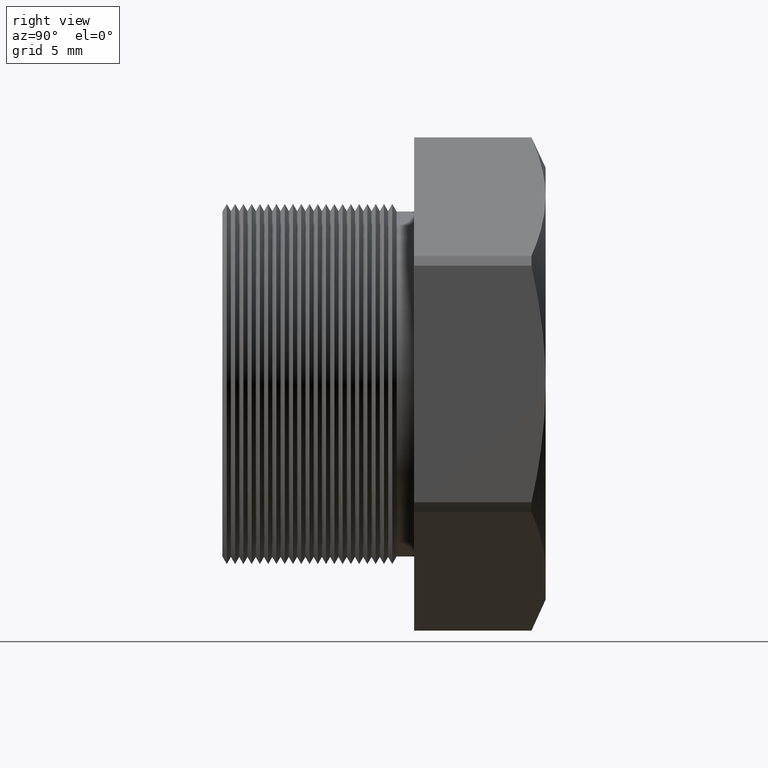
[diagram: clean part render]
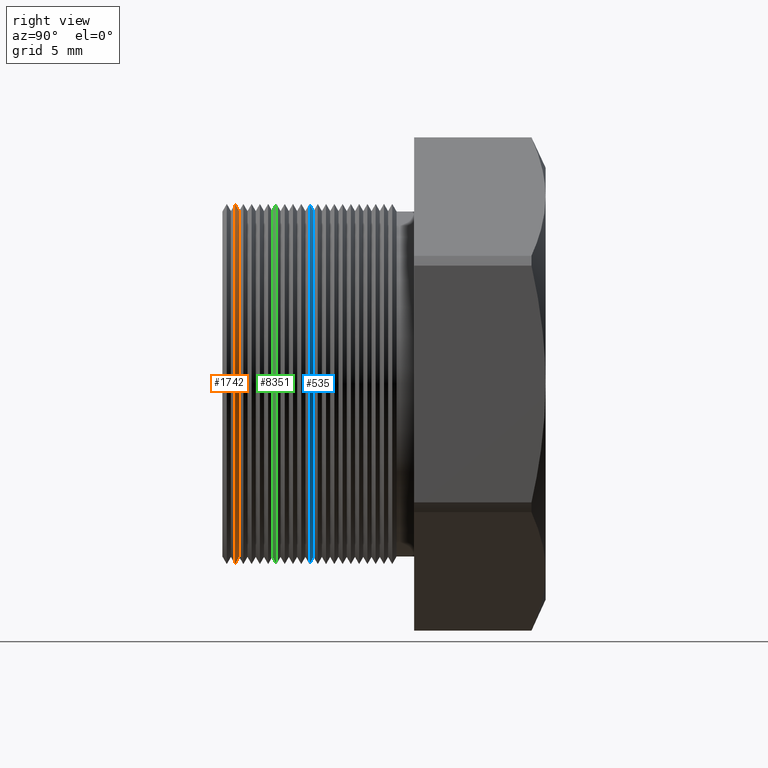
[diagram: same view with three faces highlighted in distinct colors, each labeled with its STEP entity id]
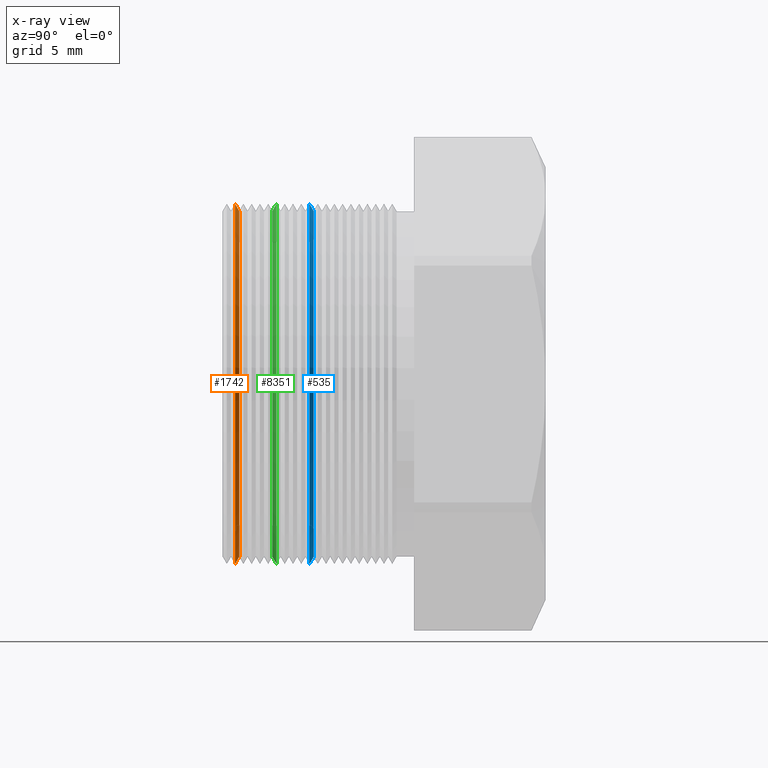
[diagram: x-ray of the same camera — body ghosted, the three highlighted faces saturated]
A machine part, right view with three faces highlighted in distinct colors.
The next image is the same camera in x-ray (body ghosted, the three faces saturated) — at least one of them is partly hidden behind the body in this view.
Their STEP definitions:

[orange] entity #1742 — the highlighted conical surface has half-angle 60 deg.
#1742 = ADVANCED_FACE ( 'NONE', ( #5607 ), #5605, .T. ) ;
#1743 = ORIENTED_EDGE ( 'NONE', *, *, #1744, .T. ) ;
#1744 = EDGE_CURVE ( 'NONE', #1745, #1746, #5601, .T. ) ;
#1745 = VERTEX_POINT ( 'NONE', #5596 ) ;
#1746 = VERTEX_POINT ( 'NONE', #5595 ) ;
#1747 = ORIENTED_EDGE ( 'NONE', *, *, #1748, .T. ) ;
#1748 = EDGE_CURVE ( 'NONE', #1746, #1766, #5594, .T. ) ;
#1749 = ORIENTED_EDGE ( 'NONE', *, *, #1765, .T. ) ;
#1750 = ORIENTED_EDGE ( 'NONE', *, *, #1751, .F. ) ;
#1751 = EDGE_CURVE ( 'NONE', #1745, #1763, #5652, .T. ) ;
#1763 = VERTEX_POINT ( 'NONE', #5628 ) ;
#1765 = EDGE_CURVE ( 'NONE', #1766, #1763, #5627, .T. ) ;
#1766 = VERTEX_POINT ( 'NONE', #5685 ) ;
#1769 = EDGE_LOOP ( 'NONE', ( #1743, #1747, #1749, #1750 ) ) ;
#5593 = CARTESIAN_POINT ( 'NONE',  ( 3.857637417314163300E-017, -0.1513927551899911200, 0.3150000000000000600 ) ) ;
#5594 = LINE ( 'NONE', #5593, #5654 ) ;
#5595 = CARTESIAN_POINT ( 'NONE',  ( 0.0000000000000000000, -0.1517951094170520700, 0.3156968979639098200 ) ) ;
#5596 = CARTESIAN_POINT ( 'NONE',  ( 3.946245386446236800E-017, -0.1517951094170520700, -0.3156968979639098200 ) ) ;
#5597 = DIRECTION ( 'NONE',  ( 0.0000000000000000000, 0.0000000000000000000, -1.000000000000000000 ) ) ;
#5598 = DIRECTION ( 'NONE',  ( 0.0000000000000000000, -1.000000000000000000, 0.0000000000000000000 ) ) ;
#5599 = CARTESIAN_POINT ( 'NONE',  ( 0.0000000000000000000, -0.1517951094170520700, 0.0000000000000000000 ) ) ;
#5600 = AXIS2_PLACEMENT_3D ( 'NONE', #5599, #5598, #5597 ) ;
#5601 = CIRCLE ( 'NONE', #5600, 0.3156968979639098200 ) ;
#5602 = DIRECTION ( 'NONE',  ( 0.0000000000000000000, 0.0000000000000000000, -1.000000000000000000 ) ) ;
#5603 = DIRECTION ( 'NONE',  ( 0.0000000000000000000, -1.000000000000000000, 0.0000000000000000000 ) ) ;
#5604 = AXIS2_PLACEMENT_3D ( 'NONE', #5606, #5603, #5602 ) ;
#5605 = CONICAL_SURFACE ( 'NONE', #5604, 0.3150000000000000600, 1.047197551196598700 ) ;
#5606 = CARTESIAN_POINT ( 'NONE',  ( 0.0000000000000000000, -0.1513927551899911200, 0.0000000000000000000 ) ) ;
#5607 = FACE_OUTER_BOUND ( 'NONE', #1769, .T. ) ;
#5624 = DIRECTION ( 'NONE',  ( -0.0000000000000000000, 1.000000000000000000, -0.0000000000000000000 ) ) ;
#5625 = CARTESIAN_POINT ( 'NONE',  ( 0.0000000000000000000, -0.1593451094170520200, 0.0000000000000000000 ) ) ;
#5626 = AXIS2_PLACEMENT_3D ( 'NONE', #5625, #5624, #5686 ) ;
#5627 = CIRCLE ( 'NONE', #5626, 0.3287738815610546900 ) ;
#5628 = CARTESIAN_POINT ( 'NONE',  ( 0.0000000000000000000, -0.1593451094170520200, -0.3287738815610546900 ) ) ;
#5649 = DIRECTION ( 'NONE',  ( 0.0000000000000000000, -0.4999999999999991100, -0.8660254037844391500 ) ) ;
#5650 = VECTOR ( 'NONE', #5649, 39.37007874015748100 ) ;
#5651 = CARTESIAN_POINT ( 'NONE',  ( 0.0000000000000000000, -0.1513927551899911200, -0.3150000000000000600 ) ) ;
#5652 = LINE ( 'NONE', #5651, #5650 ) ;
#5653 = DIRECTION ( 'NONE',  ( 1.060575238724907500E-016, -0.4999999999999991100, 0.8660254037844391500 ) ) ;
#5654 = VECTOR ( 'NONE', #5653, 39.37007874015748100 ) ;
#5685 = CARTESIAN_POINT ( 'NONE',  ( 4.026318816969966800E-017, -0.1593451094170520200, 0.3287738815610546900 ) ) ;
#5686 = DIRECTION ( 'NONE',  ( 0.0000000000000000000, 0.0000000000000000000, 1.000000000000000000 ) ) ;

[blue] entity #535 — the highlighted conical surface has half-angle 60 deg.
#491 = EDGE_CURVE ( 'NONE', #495, #497, #3387, .T. ) ;
#495 = VERTEX_POINT ( 'NONE', #3373 ) ;
#497 = VERTEX_POINT ( 'NONE', #3430 ) ;
#501 = VERTEX_POINT ( 'NONE', #3429 ) ;
#503 = ORIENTED_EDGE ( 'NONE', *, *, #504, .T. ) ;
#504 = EDGE_CURVE ( 'NONE', #501, #495, #3428, .T. ) ;
#505 = ORIENTED_EDGE ( 'NONE', *, *, #491, .T. ) ;
#506 = EDGE_CURVE ( 'NONE', #519, #501, #3424, .T. ) ;
#507 = EDGE_CURVE ( 'NONE', #519, #497, #3419, .T. ) ;
#513 = ORIENTED_EDGE ( 'NONE', *, *, #507, .F. ) ;
#519 = VERTEX_POINT ( 'NONE', #3467 ) ;
#529 = EDGE_LOOP ( 'NONE', ( #538, #503, #505, #513 ) ) ;
#535 = ADVANCED_FACE ( 'NONE', ( #3437 ), #3494, .T. ) ;
#538 = ORIENTED_EDGE ( 'NONE', *, *, #506, .T. ) ;
#3373 = CARTESIAN_POINT ( 'NONE',  ( 4.026318816969966800E-017, -0.02344510941705203000, 0.3287738815610546900 ) ) ;
#3378 = DIRECTION ( 'NONE',  ( 0.0000000000000000000, 0.0000000000000000000, 1.000000000000000000 ) ) ;
#3379 = DIRECTION ( 'NONE',  ( -0.0000000000000000000, 1.000000000000000000, -0.0000000000000000000 ) ) ;
#3380 = CARTESIAN_POINT ( 'NONE',  ( 0.0000000000000000000, -0.02344510941705203000, 0.0000000000000000000 ) ) ;
#3381 = AXIS2_PLACEMENT_3D ( 'NONE', #3380, #3379, #3378 ) ;
#3387 = CIRCLE ( 'NONE', #3381, 0.3287738815610546900 ) ;
#3416 = DIRECTION ( 'NONE',  ( 0.0000000000000000000, -0.4999999999999991100, -0.8660254037844391500 ) ) ;
#3417 = VECTOR ( 'NONE', #3416, 39.37007874015748100 ) ;
#3418 = CARTESIAN_POINT ( 'NONE',  ( 0.0000000000000000000, -0.01549275518999111900, -0.3150000000000000600 ) ) ;
#3419 = LINE ( 'NONE', #3418, #3417 ) ;
#3420 = DIRECTION ( 'NONE',  ( 0.0000000000000000000, 0.0000000000000000000, -1.000000000000000000 ) ) ;
#3421 = DIRECTION ( 'NONE',  ( 0.0000000000000000000, -1.000000000000000000, 0.0000000000000000000 ) ) ;
#3422 = CARTESIAN_POINT ( 'NONE',  ( 0.0000000000000000000, -0.01589510941705205000, 0.0000000000000000000 ) ) ;
#3423 = AXIS2_PLACEMENT_3D ( 'NONE', #3422, #3421, #3420 ) ;
#3424 = CIRCLE ( 'NONE', #3423, 0.3156968979639097100 ) ;
#3425 = DIRECTION ( 'NONE',  ( 1.060575238724907500E-016, -0.4999999999999991100, 0.8660254037844391500 ) ) ;
#3426 = VECTOR ( 'NONE', #3425, 39.37007874015748100 ) ;
#3427 = CARTESIAN_POINT ( 'NONE',  ( 3.857637417314163300E-017, -0.01549275518999111900, 0.3150000000000000600 ) ) ;
#3428 = LINE ( 'NONE', #3427, #3426 ) ;
#3429 = CARTESIAN_POINT ( 'NONE',  ( 0.0000000000000000000, -0.01589510941705205000, 0.3156968979639097100 ) ) ;
#3430 = CARTESIAN_POINT ( 'NONE',  ( 0.0000000000000000000, -0.02344510941705203000, -0.3287738815610546900 ) ) ;
#3437 = FACE_OUTER_BOUND ( 'NONE', #529, .T. ) ;
#3467 = CARTESIAN_POINT ( 'NONE',  ( 3.946245386446235500E-017, -0.01589510941705205000, -0.3156968979639097100 ) ) ;
#3490 = DIRECTION ( 'NONE',  ( 0.0000000000000000000, 0.0000000000000000000, -1.000000000000000000 ) ) ;
#3491 = DIRECTION ( 'NONE',  ( 0.0000000000000000000, -1.000000000000000000, 0.0000000000000000000 ) ) ;
#3492 = CARTESIAN_POINT ( 'NONE',  ( 0.0000000000000000000, -0.01549275518999111900, 0.0000000000000000000 ) ) ;
#3493 = AXIS2_PLACEMENT_3D ( 'NONE', #3492, #3491, #3490 ) ;
#3494 = CONICAL_SURFACE ( 'NONE', #3493, 0.3150000000000000600, 1.047197551196598700 ) ;

[green] entity #8351 — the highlighted conical surface has half-angle 60 deg.
#1101 = VERTEX_POINT ( 'NONE', #4409 ) ;
#1102 = EDGE_CURVE ( 'NONE', #1101, #1105, #4408, .T. ) ;
#1105 = VERTEX_POINT ( 'NONE', #4398 ) ;
#4398 = CARTESIAN_POINT ( 'NONE',  ( 0.0000000000000000000, -0.09139510941705203400, 0.3156968979639098200 ) ) ;
#4404 = DIRECTION ( 'NONE',  ( 0.0000000000000000000, 0.0000000000000000000, -1.000000000000000000 ) ) ;
#4405 = DIRECTION ( 'NONE',  ( 0.0000000000000000000, -1.000000000000000000, 0.0000000000000000000 ) ) ;
#4406 = CARTESIAN_POINT ( 'NONE',  ( 0.0000000000000000000, -0.09139510941705203400, 0.0000000000000000000 ) ) ;
#4407 = AXIS2_PLACEMENT_3D ( 'NONE', #4406, #4405, #4404 ) ;
#4408 = CIRCLE ( 'NONE', #4407, 0.3156968979639098200 ) ;
#4409 = CARTESIAN_POINT ( 'NONE',  ( 3.946245386446236800E-017, -0.09139510941705203400, -0.3156968979639098200 ) ) ;
#7709 = DIRECTION ( 'NONE',  ( 1.060575238724906300E-016, 0.5000000000000008900, -0.8660254037844380400 ) ) ;
#7710 = VECTOR ( 'NONE', #7709, 39.37007874015748100 ) ;
#7711 = CARTESIAN_POINT ( 'NONE',  ( 4.026318816969966200E-017, -0.08384510941705203300, -0.3287738815610546900 ) ) ;
#7712 = LINE ( 'NONE', #7711, #7710 ) ;
#7724 = DIRECTION ( 'NONE',  ( 0.0000000000000000000, 0.5000000000000008900, 0.8660254037844380400 ) ) ;
#7725 = VECTOR ( 'NONE', #7724, 39.37007874015748100 ) ;
#7726 = CARTESIAN_POINT ( 'NONE',  ( 0.0000000000000000000, -0.08384510941705203300, 0.3287738815610546900 ) ) ;
#7727 = LINE ( 'NONE', #7726, #7725 ) ;
#7728 = CARTESIAN_POINT ( 'NONE',  ( 4.026318816969966800E-017, -0.08384510941705203300, 0.3287738815610546900 ) ) ;
#7729 = DIRECTION ( 'NONE',  ( 0.0000000000000000000, 0.0000000000000000000, 1.000000000000000000 ) ) ;
#7730 = DIRECTION ( 'NONE',  ( -0.0000000000000000000, 1.000000000000000000, -0.0000000000000000000 ) ) ;
#7731 = CARTESIAN_POINT ( 'NONE',  ( 0.0000000000000000000, -0.08384510941705203300, 0.0000000000000000000 ) ) ;
#7732 = AXIS2_PLACEMENT_3D ( 'NONE', #7731, #7730, #7729 ) ;
#7733 = CIRCLE ( 'NONE', #7732, 0.3287738815610546900 ) ;
#7734 = CARTESIAN_POINT ( 'NONE',  ( 0.0000000000000000000, -0.08384510941705203300, -0.3287738815610546900 ) ) ;
#7736 = DIRECTION ( 'NONE',  ( 0.0000000000000000000, 0.0000000000000000000, 1.000000000000000000 ) ) ;
#7737 = DIRECTION ( 'NONE',  ( -0.0000000000000000000, 1.000000000000000000, -0.0000000000000000000 ) ) ;
#7738 = AXIS2_PLACEMENT_3D ( 'NONE', #7740, #7737, #7736 ) ;
#7739 = CONICAL_SURFACE ( 'NONE', #7738, 0.3287738815610546900, 1.047197551196596700 ) ;
#7740 = CARTESIAN_POINT ( 'NONE',  ( 0.0000000000000000000, -0.08384510941705203300, 0.0000000000000000000 ) ) ;
#7741 = FACE_OUTER_BOUND ( 'NONE', #8336, .T. ) ;
#8322 = ORIENTED_EDGE ( 'NONE', *, *, #8324, .F. ) ;
#8323 = VERTEX_POINT ( 'NONE', #7734 ) ;
#8324 = EDGE_CURVE ( 'NONE', #8326, #8323, #7733, .T. ) ;
#8325 = ORIENTED_EDGE ( 'NONE', *, *, #8327, .F. ) ;
#8326 = VERTEX_POINT ( 'NONE', #7728 ) ;
#8327 = EDGE_CURVE ( 'NONE', #1105, #8326, #7727, .T. ) ;
#8333 = EDGE_CURVE ( 'NONE', #1101, #8323, #7712, .T. ) ;
#8334 = ORIENTED_EDGE ( 'NONE', *, *, #1102, .F. ) ;
#8335 = ORIENTED_EDGE ( 'NONE', *, *, #8333, .T. ) ;
#8336 = EDGE_LOOP ( 'NONE', ( #8334, #8335, #8322, #8325 ) ) ;
#8351 = ADVANCED_FACE ( 'NONE', ( #7741 ), #7739, .T. ) ;